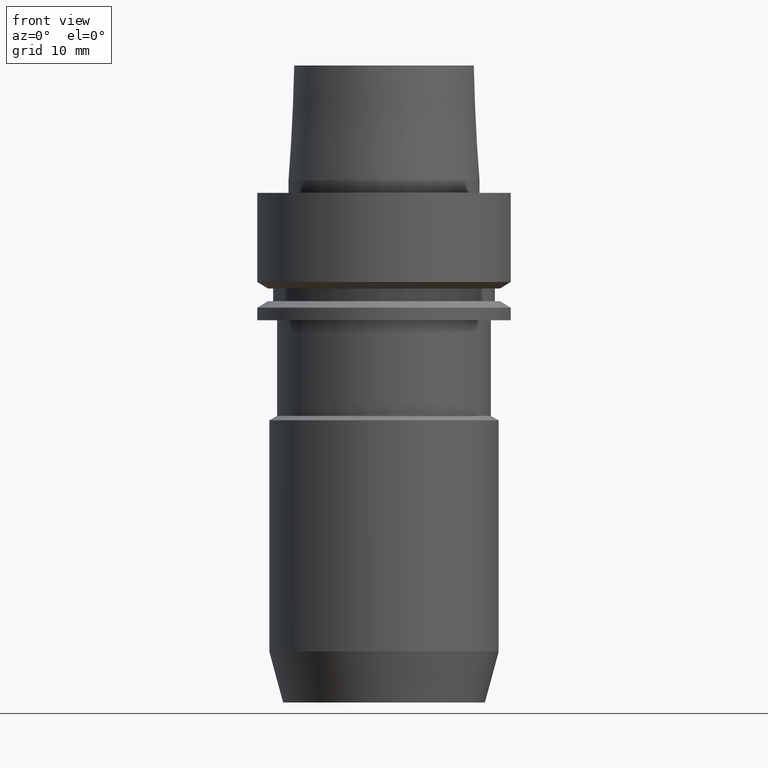
[diagram: clean part render]
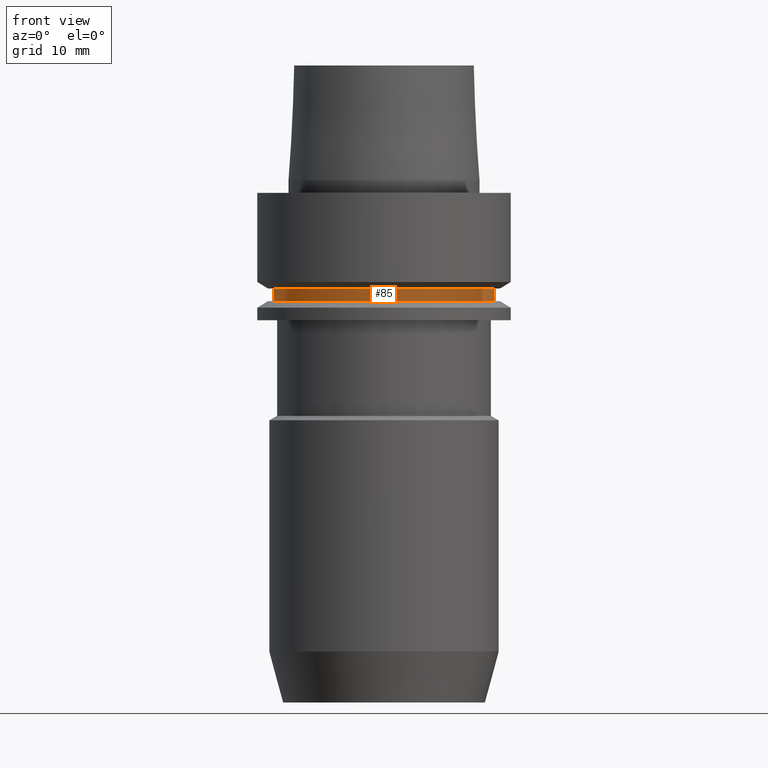
[diagram: same view with one face highlighted and labeled with its STEP entity id]
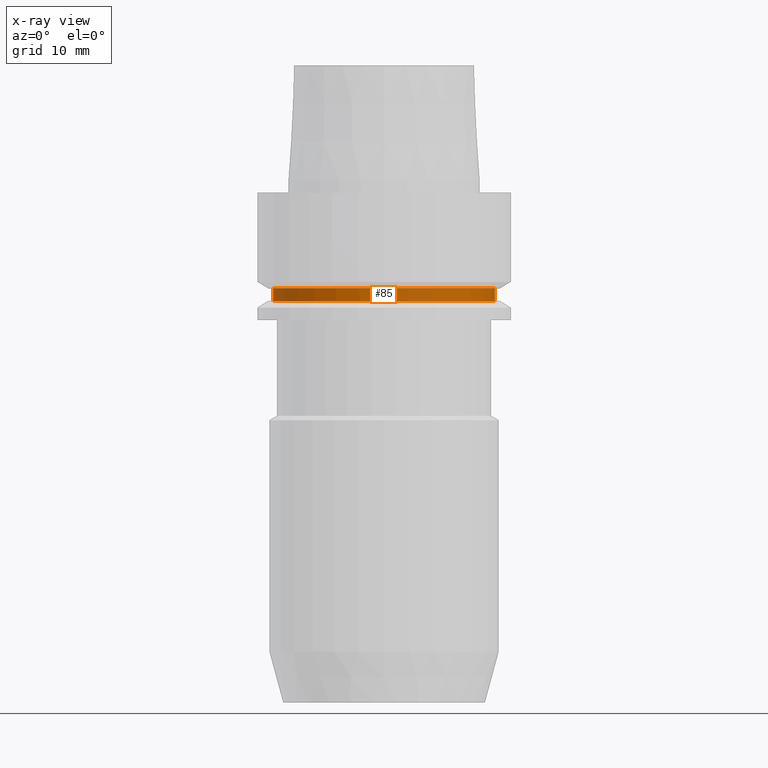
[diagram: x-ray of the same camera — body ghosted, the highlighted face saturated]
A machine part, front view. The second image highlights one B-rep face of the part: STEP entity #85.
The next image is the same camera in x-ray: the body ghosted, the highlighted face saturated — about 0% of this face is hidden behind the body in this view.
In plain terms, the highlighted cylindrical surface (bore or boss wall) has radius 17.4 mm, axis along (0, 0, -1).
Its self-contained STEP definition (entity closure, byte-faithful):
#85=ADVANCED_FACE('',(#122,#123),#124,.T.);
#122=FACE_BOUND('',#171,.T.);
#123=FACE_BOUND('',#172,.T.);
#124=CYLINDRICAL_SURFACE('',#173,17.4);
#171=EDGE_LOOP('',(#240));
#172=EDGE_LOOP('',(#241));
#173=AXIS2_PLACEMENT_3D('',#242,#243,#244);
#240=ORIENTED_EDGE('',*,*,#285,.F.);
#241=ORIENTED_EDGE('',*,*,#284,.T.);
#242=CARTESIAN_POINT('',(9.79717439317883E-016,1.95943487863576E-015,-16.0));
#243=DIRECTION('',(6.12323399573677E-017,1.22464679914735E-016,-1.0));
#244=DIRECTION('',(-1.23259516440783E-032,1.0,1.22464679914735E-016));
#284=EDGE_CURVE('',#310,#310,#311,.T.);
#285=EDGE_CURVE('',#312,#312,#313,.T.);
#310=VERTEX_POINT('',#342);
#311=CIRCLE('',#343,17.4);
#312=VERTEX_POINT('',#344);
#313=CIRCLE('',#345,17.4);
#342=CARTESIAN_POINT('',(1.04094977927525E-015,17.4,-17.0));
#343=AXIS2_PLACEMENT_3D('',#384,#385,#386);
#344=CARTESIAN_POINT('',(9.18485099360515E-016,17.4,-15.0));
#345=AXIS2_PLACEMENT_3D('',#387,#388,#389);
#384=CARTESIAN_POINT('',(1.04094977927525E-015,2.0818995585505E-015,-17.0));
#385=DIRECTION('',(-6.12323399573677E-017,-1.22464679914735E-016,1.0));
#386=DIRECTION('',(-1.23259516440783E-032,1.0,1.22464679914735E-016));
#387=CARTESIAN_POINT('',(9.18485099360515E-016,1.83697019872103E-015,-15.0));
#388=DIRECTION('',(-6.12323399573677E-017,-1.22464679914735E-016,1.0));
#389=DIRECTION('',(-1.23259516440783E-032,1.0,1.22464679914735E-016));